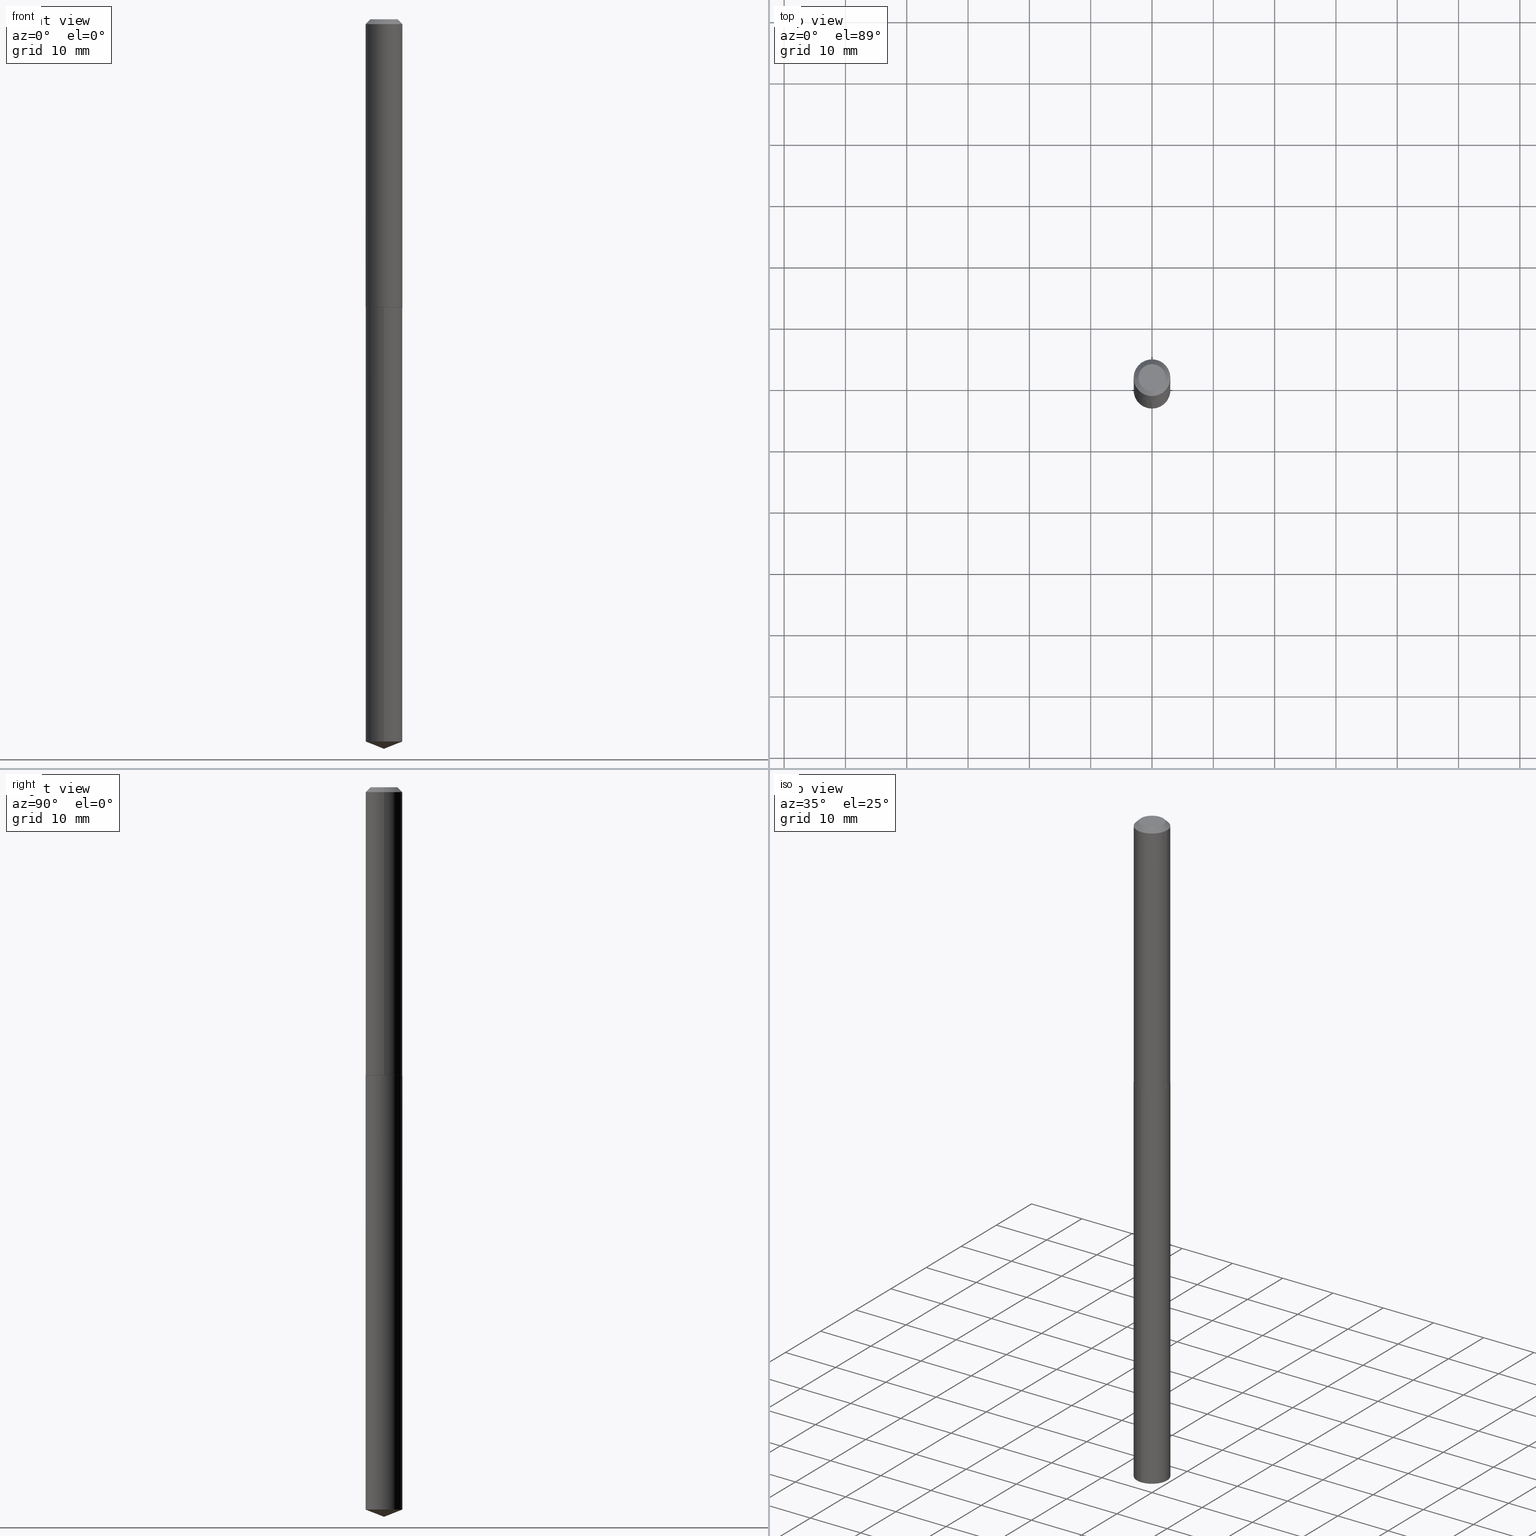
[diagram: canonical four-view strip — front | top / right | iso, engineering-drawing reading convention]
A machine part, canonical four-view strip (front | top / right | iso — engineering-drawing reading convention). The complete STEP part file that produces these views, byte-faithful:
ISO-10303-21;
HEADER;
FILE_DESCRIPTION (( 'STEP AP203' ),
    '1' );
FILE_NAME ('66739.STEP',
    '2024-04-23T12:51:33',
    ( '' ),
    ( '' ),
    'SwSTEP 2.0',
    'SolidWorks 2023',
    '' );
FILE_SCHEMA (( 'CONFIG_CONTROL_DESIGN' ));
ENDSEC;

DATA;
#1 = ADVANCED_FACE ( 'NONE', ( #115 ), #285, .T. ) ;
#2 = DIRECTION ( 'NONE',  ( 1.000000000000000000, -6.982962677686269077E-15, 0.000000000000000000 ) ) ;
#3 = APPLICATION_PROTOCOL_DEFINITION ( 'international standard', 'config_control_design', 1994, #350 ) ;
#4 = CLOSED_SHELL ( 'NONE', ( #195, #322, #1, #326, #122, #337, #227, #300 ) ) ;
#5 = CARTESIAN_POINT ( 'NONE',  ( -0.1180999999999999966, 7.155791003958990633E-16, -0.03125000000000021511 ) ) ;
#6 = AXIS2_PLACEMENT_3D ( 'NONE', #117, #126, #242 ) ;
#7 = DIRECTION ( 'NONE',  ( -2.445468806185136597E-29, 3.491481338843145583E-15, 1.000000000000000000 ) ) ;
#8 = LINE ( 'NONE', #5, #107 ) ;
#9 = EDGE_CURVE ( 'NONE', #17, #186, #175, .T. ) ;
#10 = ORIENTED_EDGE ( 'NONE', *, *, #187, .F. ) ;
#11 = APPROVAL ( #327, 'UNSPECIFIED' ) ;
#12 = CIRCLE ( 'NONE', #40, 0.1181000000000000105 ) ;
#13 = AXIS2_PLACEMENT_3D ( 'NONE', #101, #362, #211 ) ;
#14 = ORIENTED_EDGE ( 'NONE', *, *, #253, .F. ) ;
#15 = ORIENTED_EDGE ( 'NONE', *, *, #87, .T. ) ;
#16 = AXIS2_PLACEMENT_3D ( 'NONE', #83, #380, #232 ) ;
#17 = VERTEX_POINT ( 'NONE', #53 ) ;
#18 = CIRCLE ( 'NONE', #210, 0.08684999999999999665 ) ;
#19 = ORIENTED_EDGE ( 'NONE', *, *, #378, .F. ) ;
#20 = EDGE_CURVE ( 'NONE', #374, #281, #290, .T. ) ;
#21 = ADVANCED_FACE ( 'NONE', ( #258 ), #287, .T. ) ;
#22 = ORIENTED_EDGE ( 'NONE', *, *, #79, .T. ) ;
#23 = DIRECTION ( 'NONE',  ( -1.000000000000000000, 6.982962677686265922E-15, -4.876176775795935793E-29 ) ) ;
#24 = VERTEX_POINT ( 'NONE', #349 ) ;
#25 = CC_DESIGN_APPROVAL ( #11, ( #217 ) ) ;
#26 = ORIENTED_EDGE ( 'NONE', *, *, #341, .F. ) ;
#27 = DIRECTION ( 'NONE',  ( 6.611014441532074478E-15, 0.9304175679820283484, 0.3665012267242876431 ) ) ;
#28 = PERSON_AND_ORGANIZATION_ROLE ( 'design_owner' ) ;
#29 = DIRECTION ( 'NONE',  ( 1.000000000000000000, -6.982962677686269077E-15, 0.000000000000000000 ) ) ;
#30 = AXIS2_PLACEMENT_3D ( 'NONE', #66, #275, #359 ) ;
#31 = CYLINDRICAL_SURFACE ( 'NONE', #373, 0.1181000000000001077 ) ;
#32 = PERSON_AND_ORGANIZATION ( #202, #71 ) ;
#33 = PLANE ( 'NONE',  #119 ) ;
#34 = DIRECTION ( 'NONE',  ( 1.000000000000000000, -6.982962677686266711E-15, 0.000000000000000000 ) ) ;
#35 = DIRECTION ( 'NONE',  ( -2.442646099134245474E-29, 3.495523615998529672E-15, 1.000000000000000000 ) ) ;
#36 = CALENDAR_DATE ( 2024, 23, 4 ) ;
#37 = DIRECTION ( 'NONE',  ( -0.7071067811865454633, 2.468850131082235367E-15, -0.7071067811865495711 ) ) ;
#38 = DIRECTION ( 'NONE',  ( -0.7071067811862817853, 7.493145998869393328E-15, 0.7071067811868130271 ) ) ;
#39 = DATE_TIME_ROLE ( 'classification_date' ) ;
#40 = AXIS2_PLACEMENT_3D ( 'NONE', #261, #318, #55 ) ;
#41 =( GEOMETRIC_REPRESENTATION_CONTEXT ( 3 ) GLOBAL_UNCERTAINTY_ASSIGNED_CONTEXT ( ( #282 ) ) GLOBAL_UNIT_ASSIGNED_CONTEXT ( ( #302, #270, #247 ) ) REPRESENTATION_CONTEXT ( 'NONE', 'WORKASPACE' ) );
#42 = CARTESIAN_POINT ( 'NONE',  ( 1.133538591228460176E-28, -1.620643406552354983E-14, -4.638479172829875985 ) ) ;
#43 = EDGE_LOOP ( 'NONE', ( #189, #157, #216, #263 ) ) ;
#44 = VERTEX_POINT ( 'NONE', #84 ) ;
#45 = ADVANCED_FACE ( 'NONE', ( #293 ), #343, .T. ) ;
#46 = EDGE_LOOP ( 'NONE', ( #348, #315, #144, #344 ) ) ;
#47 = AXIS2_PLACEMENT_3D ( 'NONE', #387, #7, #29 ) ;
#48 = AXIS2_PLACEMENT_3D ( 'NONE', #183, #94, #34 ) ;
#49 = CARTESIAN_POINT ( 'NONE',  ( 0.1181000000000002048, -7.283230072826796879E-15, -1.849799999999999223 ) ) ;
#50 = CC_DESIGN_PERSON_AND_ORGANIZATION_ASSIGNMENT ( #32, #28, ( #206 ) ) ;
#51 = DIRECTION ( 'NONE',  ( 1.000000000000000000, -6.982962677686266711E-15, 4.875959881687004012E-29 ) ) ;
#52 = DIRECTION ( 'NONE',  ( -2.445468806185136597E-29, 3.491481338843145583E-15, 1.000000000000000000 ) ) ;
#53 = CARTESIAN_POINT ( 'NONE',  ( 0.08684999999999999665, -7.575839282410623033E-16, -2.410717224121087305E-17 ) ) ;
#54 = AXIS2_PLACEMENT_3D ( 'NONE', #382, #375, #139 ) ;
#55 = DIRECTION ( 'NONE',  ( -6.982962677686265922E-15, -1.000000000000000000, 4.626330217890369336E-15 ) ) ;
#56 = PERSON_AND_ORGANIZATION ( #202, #71 ) ;
#57 = DIRECTION ( 'NONE',  ( -2.442646099134245474E-29, 3.495523615998529672E-15, 1.000000000000000000 ) ) ;
#58 = COORDINATED_UNIVERSAL_TIME_OFFSET ( 5, 0, .BEHIND. ) ;
#59 = VECTOR ( 'NONE', #27, 39.37007874015748143 ) ;
#60 = APPROVAL_ROLE ( '' ) ;
#61 = LOCAL_TIME ( 8, 51, 33.00000000000000000, #329 ) ;
#62 = DIMENSIONAL_EXPONENTS ( 1.000000000000000000, 0.000000000000000000, 0.000000000000000000, 0.000000000000000000, 0.000000000000000000, 0.000000000000000000, 0.000000000000000000 ) ;
#63 = DIRECTION ( 'NONE',  ( 1.000000000000000000, -6.982962677686266711E-15, 4.876176775795935793E-29 ) ) ;
#64 = EDGE_CURVE ( 'NONE', #342, #190, #113, .T. ) ;
#65 = DIRECTION ( 'NONE',  ( -2.442646099134245474E-29, 3.495523615998529672E-15, 1.000000000000000000 ) ) ;
#66 = CARTESIAN_POINT ( 'NONE',  ( 0.000000000000000000, 0.000000000000000000, 0.000000000000000000 ) ) ;
#67 = DIRECTION ( 'NONE',  ( 1.000000000000000000, -6.982962677686266711E-15, 4.876176775795935793E-29 ) ) ;
#68 = DIRECTION ( 'NONE',  ( -2.442646099134245474E-29, 3.495523615998529672E-15, 1.000000000000000000 ) ) ;
#69 = DIRECTION ( 'NONE',  ( -2.445468806185136597E-29, 3.491481338843145583E-15, 1.000000000000000000 ) ) ;
#70 = CARTESIAN_POINT ( 'NONE',  ( 0.000000000000000000, 0.000000000000000000, 0.000000000000000000 ) ) ;
#71 = ORGANIZATION ( 'UNSPECIFIED', 'UNSPECIFIED', '' ) ;
#72 = ORIENTED_EDGE ( 'NONE', *, *, #187, .T. ) ;
#73 = ORIENTED_EDGE ( 'NONE', *, *, #257, .F. ) ;
#74 = VERTEX_POINT ( 'NONE', #231 ) ;
#75 = CLOSED_SHELL ( 'NONE', ( #21, #45, #194, #135, #294 ) ) ;
#76 = CIRCLE ( 'NONE', #363, 0.1180999999999999966 ) ;
#77 = ORIENTED_EDGE ( 'NONE', *, *, #370, .T. ) ;
#78 = ORIENTED_EDGE ( 'NONE', *, *, #237, .T. ) ;
#79 = EDGE_CURVE ( 'NONE', #374, #44, #12, .T. ) ;
#80 = APPROVAL ( #365, 'UNSPECIFIED' ) ;
#81 = LOCAL_TIME ( 8, 51, 33.00000000000000000, #145 ) ;
#82 = CARTESIAN_POINT ( 'NONE',  ( -0.1180999999999999966, -2.444674515282768295E-15, -0.03125000000000021511 ) ) ;
#83 = CARTESIAN_POINT ( 'NONE',  ( 4.523628197681264126E-29, -6.458542180592047827E-15, -1.849799999999999223 ) ) ;
#84 = CARTESIAN_POINT ( 'NONE',  ( -8.246878922346346666E-16, -0.1181000000000161781, -4.638479172829875097 ) ) ;
#85 = ORIENTED_EDGE ( 'NONE', *, *, #104, .T. ) ;
#86 = CONICAL_SURFACE ( 'NONE', #234, 0.1181000000000002048, 0.7853981633970726906 ) ;
#87 = EDGE_CURVE ( 'NONE', #190, #24, #254, .T. ) ;
#88 = DATE_AND_TIME ( #36, #386 ) ;
#89 = PERSON_AND_ORGANIZATION ( #202, #71 ) ;
#90 = FACE_OUTER_BOUND ( 'NONE', #111, .T. ) ;
#91 = CARTESIAN_POINT ( 'NONE',  ( 7.642090019328603538E-31, -1.091087918388490390E-16, -0.03125000000000021511 ) ) ;
#92 = APPROVAL ( #269, 'UNSPECIFIED' ) ;
#93 = APPROVAL_DATE_TIME ( #241, #92 ) ;
#94 = DIRECTION ( 'NONE',  ( -2.445468806185136597E-29, 3.491481338843145583E-15, 1.000000000000000000 ) ) ;
#95 = CARTESIAN_POINT ( 'NONE',  ( 4.524850932084356367E-29, -6.460287921261469331E-15, -1.850299999999999168 ) ) ;
#96 = CC_DESIGN_APPROVAL ( #80, ( #133 ) ) ;
#97 = CARTESIAN_POINT ( 'NONE',  ( 1.144379697444393923E-28, -1.637652814095311025E-14, -4.684999999999999609 ) ) ;
#98 = MANIFOLD_SOLID_BREP ( 'Body-Move/Copy2[2]', #4 ) ;
#99 = PERSON_AND_ORGANIZATION ( #202, #71 ) ;
#100 = CARTESIAN_POINT ( 'NONE',  ( -0.1176000000000006762, -5.622040436833477676E-15, -1.850299999999999168 ) ) ;
#101 = CARTESIAN_POINT ( 'NONE',  ( 4.524850932084356367E-29, -6.460287921261469331E-15, -1.850299999999999168 ) ) ;
#102 = VECTOR ( 'NONE', #354, 39.37007874015748854 ) ;
#103 = AXIS2_PLACEMENT_3D ( 'NONE', #204, #332, #67 ) ;
#104 = EDGE_CURVE ( 'NONE', #197, #374, #226, .T. ) ;
#105 = EDGE_LOOP ( 'NONE', ( #278, #340, #14, #19 ) ) ;
#106 = VERTEX_POINT ( 'NONE', #82 ) ;
#107 = VECTOR ( 'NONE', #37, 39.37007874015748143 ) ;
#108 = ORIENTED_EDGE ( 'NONE', *, *, #104, .F. ) ;
#109 = ORIENTED_EDGE ( 'NONE', *, *, #182, .F. ) ;
#110 = CC_DESIGN_DATE_AND_TIME_ASSIGNMENT ( #88, #200, ( #158 ) ) ;
#111 = EDGE_LOOP ( 'NONE', ( #191, #347, #381, #26 ) ) ;
#112 = LOCAL_TIME ( 8, 51, 33.00000000000000000, #58 ) ;
#113 = LINE ( 'NONE', #49, #198 ) ;
#114 = CARTESIAN_POINT ( 'NONE',  ( -8.471814942795355952E-28, 1.212499912844096213E-13, 34.68507874015747916 ) ) ;
#115 = FACE_OUTER_BOUND ( 'NONE', #43, .T. ) ;
#116 = APPROVAL_ROLE ( '' ) ;
#117 = CARTESIAN_POINT ( 'NONE',  ( 4.523628197681264126E-29, -6.458542180592047827E-15, -1.849799999999999223 ) ) ;
#118 = AXIS2_PLACEMENT_3D ( 'NONE', #246, #57, #303 ) ;
#119 = AXIS2_PLACEMENT_3D ( 'NONE', #150, #288, #23 ) ;
#120 = PERSON_AND_ORGANIZATION ( #202, #71 ) ;
#121 = DIRECTION ( 'NONE',  ( -2.445468806185136877E-29, 3.491481338843145188E-15, 1.000000000000000000 ) ) ;
#122 = ADVANCED_FACE ( 'NONE', ( #163 ), #86, .T. ) ;
#123 = DIRECTION ( 'NONE',  ( -2.445468806185136597E-29, 3.491481338843145583E-15, 1.000000000000000000 ) ) ;
#124 = DIRECTION ( 'NONE',  ( -6.982962677686265922E-15, -1.000000000000000000, 4.626330217890369336E-15 ) ) ;
#125 =( LENGTH_UNIT ( ) NAMED_UNIT ( * ) SI_UNIT ( $, .METRE. ) );
#126 = DIRECTION ( 'NONE',  ( -2.445468806185136597E-29, 3.491481338843145583E-15, 1.000000000000000000 ) ) ;
#127 = PERSON_AND_ORGANIZATION_ROLE ( 'creator' ) ;
#128 = AXIS2_PLACEMENT_3D ( 'NONE', #91, #153, #151 ) ;
#129 = FACE_OUTER_BOUND ( 'NONE', #311, .T. ) ;
#130 = LINE ( 'NONE', #364, #223 ) ;
#131 = APPLICATION_PROTOCOL_DEFINITION ( 'international standard', 'config_control_design', 1994, #277 ) ;
#132 = VERTEX_POINT ( 'NONE', #259 ) ;
#133 = PRODUCT_DEFINITION_FORMATION_WITH_SPECIFIED_SOURCE ( 'ANY', '', #206, .NOT_KNOWN. ) ;
#134 = ORIENTED_EDGE ( 'NONE', *, *, #341, .T. ) ;
#135 = ADVANCED_FACE ( 'NONE', ( #377 ), #230, .T. ) ;
#136 = CIRCLE ( 'NONE', #260, 0.1180999999999999966 ) ;
#137 = ADVANCED_BREP_SHAPE_REPRESENTATION ( '66739', ( #222, #98, #30 ), #41 ) ;
#138 = DIRECTION ( 'NONE',  ( -6.982962677686265133E-15, -1.000000000000000000, 3.498627837349972274E-15 ) ) ;
#139 = DIRECTION ( 'NONE',  ( 6.982962677686265922E-15, 1.000000000000000000, -3.495523615998529672E-15 ) ) ;
#140 = DIRECTION ( 'NONE',  ( 1.000000000000000000, -6.982962677686268288E-15, 0.000000000000000000 ) ) ;
#141 = CIRCLE ( 'NONE', #48, 0.1180999999999999966 ) ;
#142 = DIRECTION ( 'NONE',  ( -2.442646099134245474E-29, 3.495523615998529672E-15, 1.000000000000000000 ) ) ;
#143 = EDGE_LOOP ( 'NONE', ( #316, #78 ) ) ;
#144 = ORIENTED_EDGE ( 'NONE', *, *, #367, .T. ) ;
#145 = COORDINATED_UNIVERSAL_TIME_OFFSET ( 5, 0, .BEHIND. ) ;
#146 = DIRECTION ( 'NONE',  ( 2.445468806185136597E-29, -3.491481338843145583E-15, -1.000000000000000000 ) ) ;
#147 = CC_DESIGN_PERSON_AND_ORGANIZATION_ASSIGNMENT ( #99, #203, ( #133 ) ) ;
#148 = SHAPE_DEFINITION_REPRESENTATION ( #328, #137 ) ;
#149 = CARTESIAN_POINT ( 'NONE',  ( -8.471814942795355952E-28, 1.212499912844096213E-13, 34.68507874015747916 ) ) ;
#150 = CARTESIAN_POINT ( 'NONE',  ( 2.947666886061253968E-46, -4.208487100624094982E-32, -1.205358612060782005E-17 ) ) ;
#151 = DIRECTION ( 'NONE',  ( -1.000000000000000000, 6.982962677686266711E-15, 0.000000000000000000 ) ) ;
#152 = DIRECTION ( 'NONE',  ( 1.000000000000000000, -6.982962677686266711E-15, 4.875959881687004012E-29 ) ) ;
#153 = DIRECTION ( 'NONE',  ( 2.445468806185136597E-29, -3.491481338843145583E-15, -1.000000000000000000 ) ) ;
#154 = AXIS2_PLACEMENT_3D ( 'NONE', #324, #142, #320 ) ;
#155 = AXIS2_PLACEMENT_3D ( 'NONE', #149, #35, #267 ) ;
#156 = DIRECTION ( 'NONE',  ( -6.982962677686265922E-15, -1.000000000000000000, 4.626330217890369336E-15 ) ) ;
#157 = ORIENTED_EDGE ( 'NONE', *, *, #166, .T. ) ;
#158 = PRODUCT_DEFINITION ( 'UNKNOWN', '', #133, #213 ) ;
#159 = ORIENTED_EDGE ( 'NONE', *, *, #20, .F. ) ;
#160 = ORIENTED_EDGE ( 'NONE', *, *, #280, .T. ) ;
#161 = ORIENTED_EDGE ( 'NONE', *, *, #240, .F. ) ;
#162 = VECTOR ( 'NONE', #38, 39.37007874015748854 ) ;
#163 = FACE_OUTER_BOUND ( 'NONE', #346, .T. ) ;
#164 = EDGE_CURVE ( 'NONE', #190, #132, #235, .T. ) ;
#165 = DIRECTION ( 'NONE',  ( -2.445468806185136597E-29, 3.491481338843145583E-15, 1.000000000000000000 ) ) ;
#166 = EDGE_CURVE ( 'NONE', #283, #24, #179, .T. ) ;
#167 = EDGE_LOOP ( 'NONE', ( #77, #369 ) ) ;
#168 = AXIS2_PLACEMENT_3D ( 'NONE', #273, #69, #2 ) ;
#169 = DIRECTION ( 'NONE',  ( -2.442646099134245474E-29, 3.495523615998529672E-15, 1.000000000000000000 ) ) ;
#170 = DIRECTION ( 'NONE',  ( 0.7071067811862817853, -2.468850131079474354E-15, 0.7071067811868130271 ) ) ;
#171 = CARTESIAN_POINT ( 'NONE',  ( 1.144379697444393923E-28, -1.637652814095311025E-14, -4.684999999999999609 ) ) ;
#172 = CC_DESIGN_PERSON_AND_ORGANIZATION_ASSIGNMENT ( #207, #214, ( #217 ) ) ;
#173 = DATE_AND_TIME ( #298, #112 ) ;
#174 = CARTESIAN_POINT ( 'NONE',  ( 0.1176000000000006762, -7.281484332157379320E-15, -1.850299999999999168 ) ) ;
#175 = CIRCLE ( 'NONE', #291, 0.08684999999999999665 ) ;
#176 = CONICAL_SURFACE ( 'NONE', #155, 99.94676754584088485, 1.195550537616122622 ) ;
#177 = APPROVAL_DATE_TIME ( #173, #11 ) ;
#178 = LENGTH_MEASURE_WITH_UNIT ( LENGTH_MEASURE( 0.02539999999999999897 ), #125 );
#179 = LINE ( 'NONE', #297, #162 ) ;
#180 = COORDINATED_UNIVERSAL_TIME_OFFSET ( 5, 0, .BEHIND. ) ;
#181 = FACE_OUTER_BOUND ( 'NONE', #143, .T. ) ;
#182 = EDGE_CURVE ( 'NONE', #283, #342, #383, .T. ) ;
#183 = CARTESIAN_POINT ( 'NONE',  ( 7.642090019328603538E-31, -1.091087918388490390E-16, -0.03125000000000021511 ) ) ;
#184 = DIRECTION ( 'NONE',  ( -2.445468806185136877E-29, 3.491481338843145188E-15, 1.000000000000000000 ) ) ;
#185 = VECTOR ( 'NONE', #121, 39.37007874015748143 ) ;
#186 = VERTEX_POINT ( 'NONE', #358 ) ;
#187 = EDGE_CURVE ( 'NONE', #197, #44, #301, .T. ) ;
#188 = ORIENTED_EDGE ( 'NONE', *, *, #370, .F. ) ;
#189 = ORIENTED_EDGE ( 'NONE', *, *, #257, .T. ) ;
#190 = VERTEX_POINT ( 'NONE', #201 ) ;
#191 = ORIENTED_EDGE ( 'NONE', *, *, #280, .F. ) ;
#192 = APPROVAL_PERSON_ORGANIZATION ( #120, #80, #390 ) ;
#193 = CARTESIAN_POINT ( 'NONE',  ( 4.523628197681264126E-29, -6.458542180592047827E-15, -1.849799999999999223 ) ) ;
#194 = ADVANCED_FACE ( 'NONE', ( #331 ), #176, .T. ) ;
#195 = ADVANCED_FACE ( 'NONE', ( #333 ), #379, .T. ) ;
#196 = CARTESIAN_POINT ( 'NONE',  ( 5.895333772122507937E-46, -8.416974201248189963E-32, -2.410717224121564011E-17 ) ) ;
#197 = VERTEX_POINT ( 'NONE', #171 ) ;
#198 = VECTOR ( 'NONE', #170, 39.37007874015748854 ) ;
#199 = EDGE_LOOP ( 'NONE', ( #10, #85, #249 ) ) ;
#200 = DATE_TIME_ROLE ( 'creation_date' ) ;
#201 = CARTESIAN_POINT ( 'NONE',  ( 0.1181000000000002048, -7.283230072826796879E-15, -1.849799999999999223 ) ) ;
#202 = PERSON ( 'UNSPECIFIED', 'UNSPECIFIED', 'UNSPECIFIED', ('UNSPECIFIED'), ('UNSPECIFIED'), ('UNSPECIFIED') ) ;
#203 = PERSON_AND_ORGANIZATION_ROLE ( 'design_supplier' ) ;
#204 = CARTESIAN_POINT ( 'NONE',  ( 0.000000000000000000, 0.000000000000000000, 0.000000000000000000 ) ) ;
#205 = FACE_OUTER_BOUND ( 'NONE', #289, .T. ) ;
#206 = PRODUCT ( '66739', '66739', '', ( #272 ) ) ;
#207 = PERSON_AND_ORGANIZATION ( #202, #71 ) ;
#208 = FACE_OUTER_BOUND ( 'NONE', #167, .T. ) ;
#209 = DIRECTION ( 'NONE',  ( -2.442646099134245474E-29, 3.495523615998529672E-15, 1.000000000000000000 ) ) ;
#210 = AXIS2_PLACEMENT_3D ( 'NONE', #299, #123, #152 ) ;
#211 = DIRECTION ( 'NONE',  ( 1.000000000000000000, -6.982962677686265922E-15, 4.876176775795935793E-29 ) ) ;
#212 = CARTESIAN_POINT ( 'NONE',  ( 8.391509709327920889E-16, 0.1180999999999935435, -1.850299999999999612 ) ) ;
#213 = DESIGN_CONTEXT ( 'detailed design', #350, 'design' ) ;
#214 = PERSON_AND_ORGANIZATION_ROLE ( 'classification_officer' ) ;
#215 = CARTESIAN_POINT ( 'NONE',  ( 7.642090019328603538E-31, -1.091087918388490390E-16, -0.03125000000000021511 ) ) ;
#216 = ORIENTED_EDGE ( 'NONE', *, *, #87, .F. ) ;
#217 = SECURITY_CLASSIFICATION ( '', '', #355 ) ;
#218 = CC_DESIGN_PERSON_AND_ORGANIZATION_ASSIGNMENT ( #353, #127, ( #158 ) ) ;
#219 = ORIENTED_EDGE ( 'NONE', *, *, #79, .F. ) ;
#220 = EDGE_LOOP ( 'NONE', ( #108, #72, #219 ) ) ;
#221 = ORIENTED_EDGE ( 'NONE', *, *, #166, .F. ) ;
#222 = MANIFOLD_SOLID_BREP ( 'Body-Move/Copy2[1]', #75 ) ;
#223 = VECTOR ( 'NONE', #184, 39.37007874015748143 ) ;
#224 = EDGE_LOOP ( 'NONE', ( #159, #22, #251, #262 ) ) ;
#225 = CARTESIAN_POINT ( 'NONE',  ( 8.391509709327234580E-16, 0.1180999999999935435, -1.850299999999999612 ) ) ;
#226 = LINE ( 'NONE', #295, #59 ) ;
#227 = ADVANCED_FACE ( 'NONE', ( #205 ), #229, .T. ) ;
#228 = AXIS2_PLACEMENT_3D ( 'NONE', #351, #376, #321 ) ;
#229 = CONICAL_SURFACE ( 'NONE', #338, 0.1180999999999999966, 0.7853981633974453924 ) ;
#230 = CYLINDRICAL_SURFACE ( 'NONE', #118, 0.1180999999999999966 ) ;
#231 = CARTESIAN_POINT ( 'NONE',  ( -8.246878922347027059E-16, -0.1181000000000064498, -1.850299999999998501 ) ) ;
#232 = DIRECTION ( 'NONE',  ( 1.000000000000000000, -6.982962677686268288E-15, 0.000000000000000000 ) ) ;
#233 = CALENDAR_DATE ( 2024, 23, 4 ) ;
#234 = AXIS2_PLACEMENT_3D ( 'NONE', #193, #165, #140 ) ;
#235 = LINE ( 'NONE', #366, #185 ) ;
#236 = DATE_AND_TIME ( #334, #81 ) ;
#237 = EDGE_CURVE ( 'NONE', #281, #74, #136, .T. ) ;
#238 = CARTESIAN_POINT ( 'NONE',  ( 8.391509709327914972E-16, 0.1180999999999838013, -4.638479172829875985 ) ) ;
#239 = LINE ( 'NONE', #361, #314 ) ;
#240 = EDGE_CURVE ( 'NONE', #17, #132, #239, .T. ) ;
#241 = DATE_AND_TIME ( #233, #286 ) ;
#242 = DIRECTION ( 'NONE',  ( 1.000000000000000000, -6.982962677686268288E-15, 0.000000000000000000 ) ) ;
#243 = CC_DESIGN_SECURITY_CLASSIFICATION ( #217, ( #133 ) ) ;
#244 = PERSON_AND_ORGANIZATION ( #202, #71 ) ;
#245 = CARTESIAN_POINT ( 'NONE',  ( 7.642090019328603538E-31, -1.091087918388490390E-16, -0.03125000000000021511 ) ) ;
#246 = CARTESIAN_POINT ( 'NONE',  ( 4.524850932084356367E-29, -6.460287921261469331E-15, -1.850299999999999168 ) ) ;
#247 =( NAMED_UNIT ( * ) SI_UNIT ( $, .STERADIAN. ) SOLID_ANGLE_UNIT ( ) );
#248 = PRODUCT_RELATED_PRODUCT_CATEGORY ( 'detail', '', ( #206 ) ) ;
#249 = ORIENTED_EDGE ( 'NONE', *, *, #264, .F. ) ;
#250 = APPROVAL_PERSON_ORGANIZATION ( #244, #92, #116 ) ;
#251 = ORIENTED_EDGE ( 'NONE', *, *, #378, .T. ) ;
#252 = ORIENTED_EDGE ( 'NONE', *, *, #268, .F. ) ;
#253 = EDGE_CURVE ( 'NONE', #74, #281, #345, .T. ) ;
#254 = CIRCLE ( 'NONE', #228, 0.1181000000000002048 ) ;
#255 = CIRCLE ( 'NONE', #168, 0.1176000000000006762 ) ;
#256 = ORIENTED_EDGE ( 'NONE', *, *, #64, .T. ) ;
#257 = EDGE_CURVE ( 'NONE', #342, #283, #255, .T. ) ;
#258 = FACE_OUTER_BOUND ( 'NONE', #105, .T. ) ;
#259 = CARTESIAN_POINT ( 'NONE',  ( 0.1180999999999999966, -9.337966840735971660E-16, -0.03125000000000021511 ) ) ;
#260 = AXIS2_PLACEMENT_3D ( 'NONE', #389, #209, #124 ) ;
#261 = CARTESIAN_POINT ( 'NONE',  ( 1.133538591228460176E-28, -1.620643406552354983E-14, -4.638479172829875985 ) ) ;
#262 = ORIENTED_EDGE ( 'NONE', *, *, #237, .F. ) ;
#263 = ORIENTED_EDGE ( 'NONE', *, *, #64, .F. ) ;
#264 = EDGE_CURVE ( 'NONE', #44, #374, #292, .T. ) ;
#265 = AXIS2_PLACEMENT_3D ( 'NONE', #42, #68, #306 ) ;
#266 = DIRECTION ( 'NONE',  ( 1.000000000000000000, -6.982962677686266711E-15, 0.000000000000000000 ) ) ;
#267 = DIRECTION ( 'NONE',  ( -6.982962677686265133E-15, -1.000000000000000000, 3.498627837349972274E-15 ) ) ;
#268 = EDGE_CURVE ( 'NONE', #24, #190, #368, .T. ) ;
#269 = APPROVAL_STATUS ( 'not_yet_approved' ) ;
#270 =( NAMED_UNIT ( * ) PLANE_ANGLE_UNIT ( ) SI_UNIT ( $, .RADIAN. ) );
#271 = DIRECTION ( 'NONE',  ( -1.000000000000000000, 6.982962677686266711E-15, 0.000000000000000000 ) ) ;
#272 = MECHANICAL_CONTEXT ( 'NONE', #277, 'mechanical' ) ;
#273 = CARTESIAN_POINT ( 'NONE',  ( 4.524850932084356367E-29, -6.460287921261469331E-15, -1.850299999999999168 ) ) ;
#274 = VECTOR ( 'NONE', #352, 39.37007874015748143 ) ;
#275 = DIRECTION ( 'NONE',  ( 0.000000000000000000, 0.000000000000000000, 1.000000000000000000 ) ) ;
#276 = CARTESIAN_POINT ( 'NONE',  ( -8.246878922347027059E-16, -0.1181000000000064498, -1.850299999999998501 ) ) ;
#277 = APPLICATION_CONTEXT ( 'configuration controlled 3d designs of mechanical parts and assemblies' ) ;
#278 = ORIENTED_EDGE ( 'NONE', *, *, #264, .T. ) ;
#279 = APPROVAL_PERSON_ORGANIZATION ( #89, #11, #60 ) ;
#280 = EDGE_CURVE ( 'NONE', #24, #106, #130, .T. ) ;
#281 = VERTEX_POINT ( 'NONE', #212 ) ;
#282 = UNCERTAINTY_MEASURE_WITH_UNIT (LENGTH_MEASURE( 1.000000000000000082E-05 ), #302, 'distance_accuracy_value', 'NONE');
#283 = VERTEX_POINT ( 'NONE', #100 ) ;
#284 = ORIENTED_EDGE ( 'NONE', *, *, #164, .F. ) ;
#285 = CONICAL_SURFACE ( 'NONE', #16, 0.1181000000000002048, 0.7853981633970726906 ) ;
#286 = LOCAL_TIME ( 8, 51, 33.00000000000000000, #180 ) ;
#287 = CYLINDRICAL_SURFACE ( 'NONE', #154, 0.1180999999999999966 ) ;
#288 = DIRECTION ( 'NONE',  ( 2.438088387897960049E-29, -3.491481338843145188E-15, -1.000000000000000000 ) ) ;
#289 = EDGE_LOOP ( 'NONE', ( #161, #188, #313, #134 ) ) ;
#290 = LINE ( 'NONE', #225, #274 ) ;
#291 = AXIS2_PLACEMENT_3D ( 'NONE', #196, #52, #51 ) ;
#292 = CIRCLE ( 'NONE', #265, 0.1181000000000000105 ) ;
#293 = FACE_OUTER_BOUND ( 'NONE', #199, .T. ) ;
#294 = ADVANCED_FACE ( 'NONE', ( #181 ), #336, .F. ) ;
#295 = CARTESIAN_POINT ( 'NONE',  ( 1.145433428070047335E-28, -1.636156929011189742E-14, -4.684999999999999609 ) ) ;
#296 = PERSON_AND_ORGANIZATION_ROLE ( 'creator' ) ;
#297 = CARTESIAN_POINT ( 'NONE',  ( -0.1181000000000002048, -5.619391209659368053E-15, -1.849799999999999223 ) ) ;
#298 = CALENDAR_DATE ( 2024, 23, 4 ) ;
#299 = CARTESIAN_POINT ( 'NONE',  ( 5.895333772122507937E-46, -8.416974201248189963E-32, -2.410717224121564011E-17 ) ) ;
#300 = ADVANCED_FACE ( 'NONE', ( #208 ), #33, .F. ) ;
#301 = LINE ( 'NONE', #97, #102 ) ;
#302 =( CONVERSION_BASED_UNIT ( 'INCH', #178 ) LENGTH_UNIT ( ) NAMED_UNIT ( #62 ) );
#303 = DIRECTION ( 'NONE',  ( -6.982962677686265922E-15, -1.000000000000000000, 4.626330217890369336E-15 ) ) ;
#304 = COORDINATED_UNIVERSAL_TIME_OFFSET ( 5, 0, .BEHIND. ) ;
#305 = DIRECTION ( 'NONE',  ( -2.445468806185136597E-29, 3.491481338843145583E-15, 1.000000000000000000 ) ) ;
#306 = DIRECTION ( 'NONE',  ( -6.982962677686265922E-15, -1.000000000000000000, 4.626330217890369336E-15 ) ) ;
#307 = DATE_AND_TIME ( #325, #61 ) ;
#308 = DIRECTION ( 'NONE',  ( -2.445468806185136597E-29, 3.491481338843145583E-15, 1.000000000000000000 ) ) ;
#309 = DIRECTION ( 'NONE',  ( 0.7071067811865454633, -7.319954787623248157E-15, -0.7071067811865495711 ) ) ;
#310 = AXIS2_PLACEMENT_3D ( 'NONE', #95, #65, #156 ) ;
#311 = EDGE_LOOP ( 'NONE', ( #73, #109 ) ) ;
#312 = EDGE_CURVE ( 'NONE', #186, #106, #8, .T. ) ;
#313 = ORIENTED_EDGE ( 'NONE', *, *, #312, .T. ) ;
#314 = VECTOR ( 'NONE', #309, 39.37007874015748143 ) ;
#315 = ORIENTED_EDGE ( 'NONE', *, *, #240, .T. ) ;
#316 = ORIENTED_EDGE ( 'NONE', *, *, #253, .T. ) ;
#317 = CC_DESIGN_DATE_AND_TIME_ASSIGNMENT ( #236, #39, ( #217 ) ) ;
#318 = DIRECTION ( 'NONE',  ( -2.442646099134245474E-29, 3.495523615998529672E-15, 1.000000000000000000 ) ) ;
#319 = VECTOR ( 'NONE', #360, 39.37007874015748143 ) ;
#320 = DIRECTION ( 'NONE',  ( -6.982962677686265922E-15, -1.000000000000000000, 4.626330217890369336E-15 ) ) ;
#321 = DIRECTION ( 'NONE',  ( 1.000000000000000000, -6.982962677686268288E-15, 0.000000000000000000 ) ) ;
#322 = ADVANCED_FACE ( 'NONE', ( #388 ), #31, .T. ) ;
#323 = EDGE_LOOP ( 'NONE', ( #15, #160, #339, #284 ) ) ;
#324 = CARTESIAN_POINT ( 'NONE',  ( 4.524850932084356367E-29, -6.460287921261469331E-15, -1.850299999999999168 ) ) ;
#325 = CALENDAR_DATE ( 2024, 23, 4 ) ;
#326 = ADVANCED_FACE ( 'NONE', ( #129 ), #356, .F. ) ;
#327 = APPROVAL_STATUS ( 'not_yet_approved' ) ;
#328 = PRODUCT_DEFINITION_SHAPE ( 'NONE', 'NONE',  #158 ) ;
#329 = COORDINATED_UNIVERSAL_TIME_OFFSET ( 5, 0, .BEHIND. ) ;
#330 = LINE ( 'NONE', #276, #319 ) ;
#331 = FACE_OUTER_BOUND ( 'NONE', #220, .T. ) ;
#332 = DIRECTION ( 'NONE',  ( -2.445468806185136597E-29, 3.491481338843145583E-15, 1.000000000000000000 ) ) ;
#333 = FACE_OUTER_BOUND ( 'NONE', #46, .T. ) ;
#334 = CALENDAR_DATE ( 2024, 23, 4 ) ;
#335 = CYLINDRICAL_SURFACE ( 'NONE', #103, 0.1181000000000001077 ) ;
#336 = PLANE ( 'NONE',  #54 ) ;
#337 = ADVANCED_FACE ( 'NONE', ( #90 ), #335, .T. ) ;
#338 = AXIS2_PLACEMENT_3D ( 'NONE', #215, #146, #271 ) ;
#339 = ORIENTED_EDGE ( 'NONE', *, *, #367, .F. ) ;
#340 = ORIENTED_EDGE ( 'NONE', *, *, #20, .T. ) ;
#341 = EDGE_CURVE ( 'NONE', #106, #132, #141, .T. ) ;
#342 = VERTEX_POINT ( 'NONE', #174 ) ;
#343 = CONICAL_SURFACE ( 'NONE', #372, 99.94676754584088485, 1.195550537616122622 ) ;
#344 = ORIENTED_EDGE ( 'NONE', *, *, #312, .F. ) ;
#345 = CIRCLE ( 'NONE', #310, 0.1180999999999999966 ) ;
#346 = EDGE_LOOP ( 'NONE', ( #221, #371, #256, #252 ) ) ;
#347 = ORIENTED_EDGE ( 'NONE', *, *, #268, .T. ) ;
#348 = ORIENTED_EDGE ( 'NONE', *, *, #9, .F. ) ;
#349 = CARTESIAN_POINT ( 'NONE',  ( -0.1181000000000002048, -5.619391209659368053E-15, -1.849799999999999223 ) ) ;
#350 = APPLICATION_CONTEXT ( 'configuration controlled 3d designs of mechanical parts and assemblies' ) ;
#351 = CARTESIAN_POINT ( 'NONE',  ( 4.523628197681264126E-29, -6.458542180592047827E-15, -1.849799999999999223 ) ) ;
#352 = DIRECTION ( 'NONE',  ( -2.442646099134245474E-29, 3.495523615998529672E-15, 1.000000000000000000 ) ) ;
#353 = PERSON_AND_ORGANIZATION ( #202, #71 ) ;
#354 = DIRECTION ( 'NONE',  ( -6.497071151882127725E-15, -0.9304175679820257949, 0.3665012267242941935 ) ) ;
#355 = SECURITY_CLASSIFICATION_LEVEL ( 'unclassified' ) ;
#356 = PLANE ( 'NONE',  #13 ) ;
#357 = CC_DESIGN_PERSON_AND_ORGANIZATION_ASSIGNMENT ( #56, #296, ( #133 ) ) ;
#358 = CARTESIAN_POINT ( 'NONE',  ( -0.08684999999999999665, 6.610247044764755977E-16, -2.410717224122007129E-17 ) ) ;
#359 = DIRECTION ( 'NONE',  ( 1.000000000000000000, 0.000000000000000000, 0.000000000000000000 ) ) ;
#360 = DIRECTION ( 'NONE',  ( -2.442646099134245474E-29, 3.495523615998529672E-15, 1.000000000000000000 ) ) ;
#361 = CARTESIAN_POINT ( 'NONE',  ( 0.1180999999999999966, -9.193336053756670343E-16, -0.03125000000000021511 ) ) ;
#362 = DIRECTION ( 'NONE',  ( -2.438088387897960049E-29, 3.491481338843145188E-15, 1.000000000000000000 ) ) ;
#363 = AXIS2_PLACEMENT_3D ( 'NONE', #245, #308, #266 ) ;
#364 = CARTESIAN_POINT ( 'NONE',  ( -0.1181000000000001077, 8.391509709326790846E-16, -5.809262341591049389E-30 ) ) ;
#365 = APPROVAL_STATUS ( 'not_yet_approved' ) ;
#366 = CARTESIAN_POINT ( 'NONE',  ( 0.1181000000000001077, -8.246878922347488542E-16, 5.758764772215005345E-30 ) ) ;
#367 = EDGE_CURVE ( 'NONE', #132, #106, #76, .T. ) ;
#368 = CIRCLE ( 'NONE', #6, 0.1181000000000002048 ) ;
#369 = ORIENTED_EDGE ( 'NONE', *, *, #9, .T. ) ;
#370 = EDGE_CURVE ( 'NONE', #186, #17, #18, .T. ) ;
#371 = ORIENTED_EDGE ( 'NONE', *, *, #182, .T. ) ;
#372 = AXIS2_PLACEMENT_3D ( 'NONE', #114, #169, #138 ) ;
#373 = AXIS2_PLACEMENT_3D ( 'NONE', #70, #305, #63 ) ;
#374 = VERTEX_POINT ( 'NONE', #238 ) ;
#375 = DIRECTION ( 'NONE',  ( 2.442646099134245193E-29, -3.495523615998529672E-15, -1.000000000000000000 ) ) ;
#376 = DIRECTION ( 'NONE',  ( -2.445468806185136597E-29, 3.491481338843145583E-15, 1.000000000000000000 ) ) ;
#377 = FACE_OUTER_BOUND ( 'NONE', #224, .T. ) ;
#378 = EDGE_CURVE ( 'NONE', #44, #74, #330, .T. ) ;
#379 = CONICAL_SURFACE ( 'NONE', #128, 0.1180999999999999966, 0.7853981633974453924 ) ;
#380 = DIRECTION ( 'NONE',  ( -2.445468806185136597E-29, 3.491481338843145583E-15, 1.000000000000000000 ) ) ;
#381 = ORIENTED_EDGE ( 'NONE', *, *, #164, .T. ) ;
#382 = CARTESIAN_POINT ( 'NONE',  ( 4.524850932084356367E-29, -6.460287921261469331E-15, -1.850299999999999168 ) ) ;
#383 = CIRCLE ( 'NONE', #47, 0.1176000000000006762 ) ;
#384 = APPROVAL_DATE_TIME ( #307, #80 ) ;
#385 = CC_DESIGN_APPROVAL ( #92, ( #158 ) ) ;
#386 = LOCAL_TIME ( 8, 51, 33.00000000000000000, #304 ) ;
#387 = CARTESIAN_POINT ( 'NONE',  ( 4.524850932084356367E-29, -6.460287921261469331E-15, -1.850299999999999168 ) ) ;
#388 = FACE_OUTER_BOUND ( 'NONE', #323, .T. ) ;
#389 = CARTESIAN_POINT ( 'NONE',  ( 4.524850932084356367E-29, -6.460287921261469331E-15, -1.850299999999999168 ) ) ;
#390 = APPROVAL_ROLE ( '' ) ;
ENDSEC;
END-ISO-10303-21;
